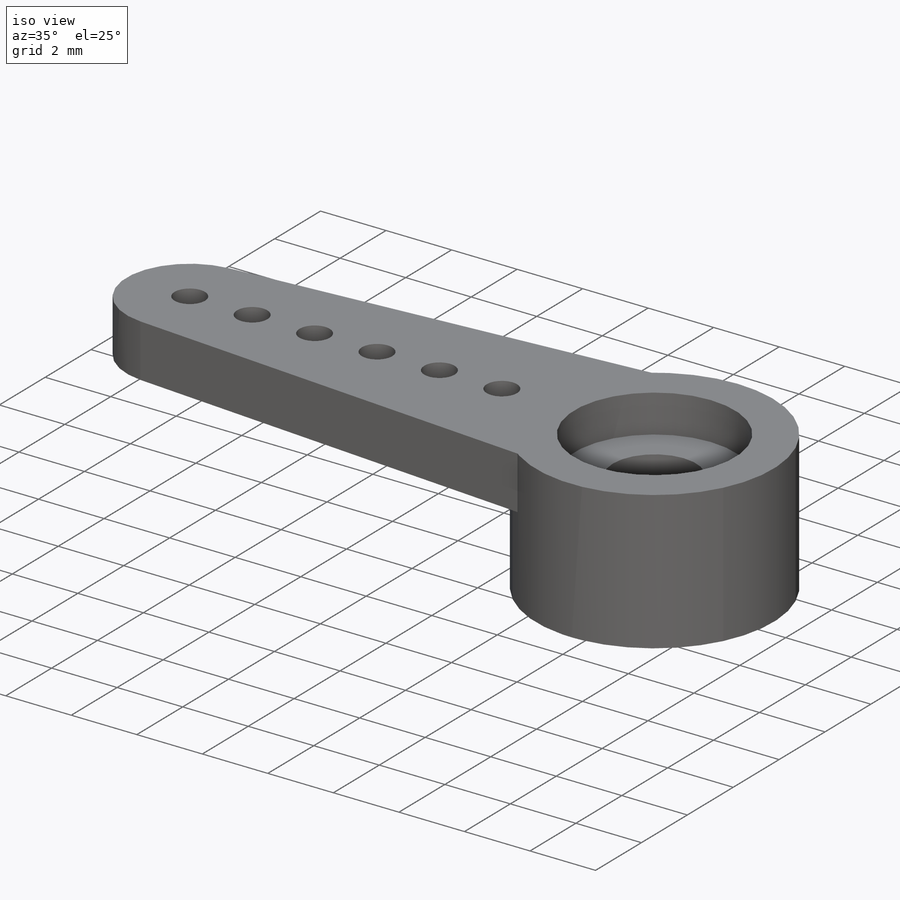
[diagram: iso view]
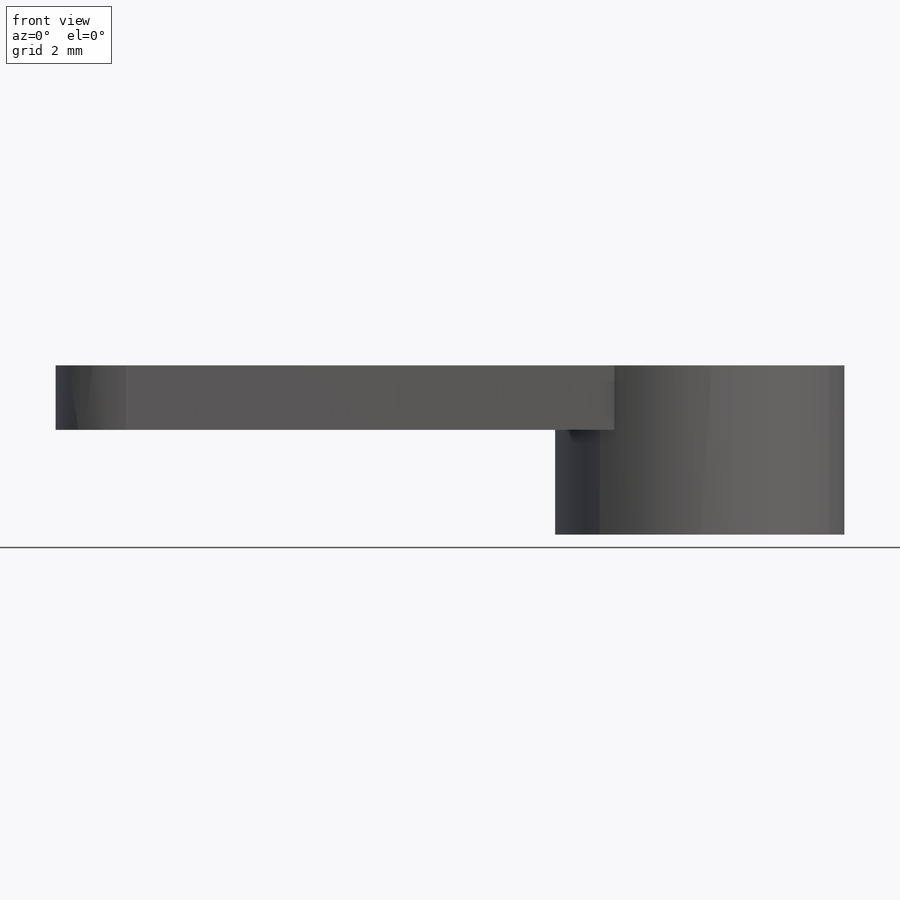
[diagram: front view]
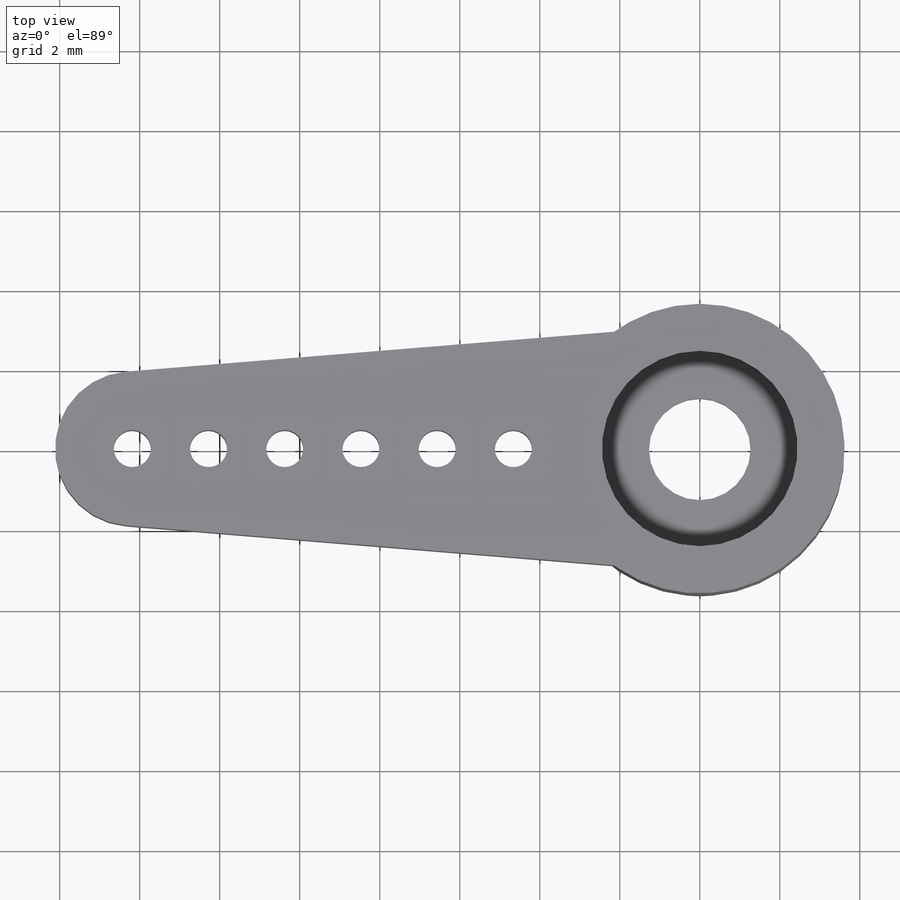
[diagram: top view]
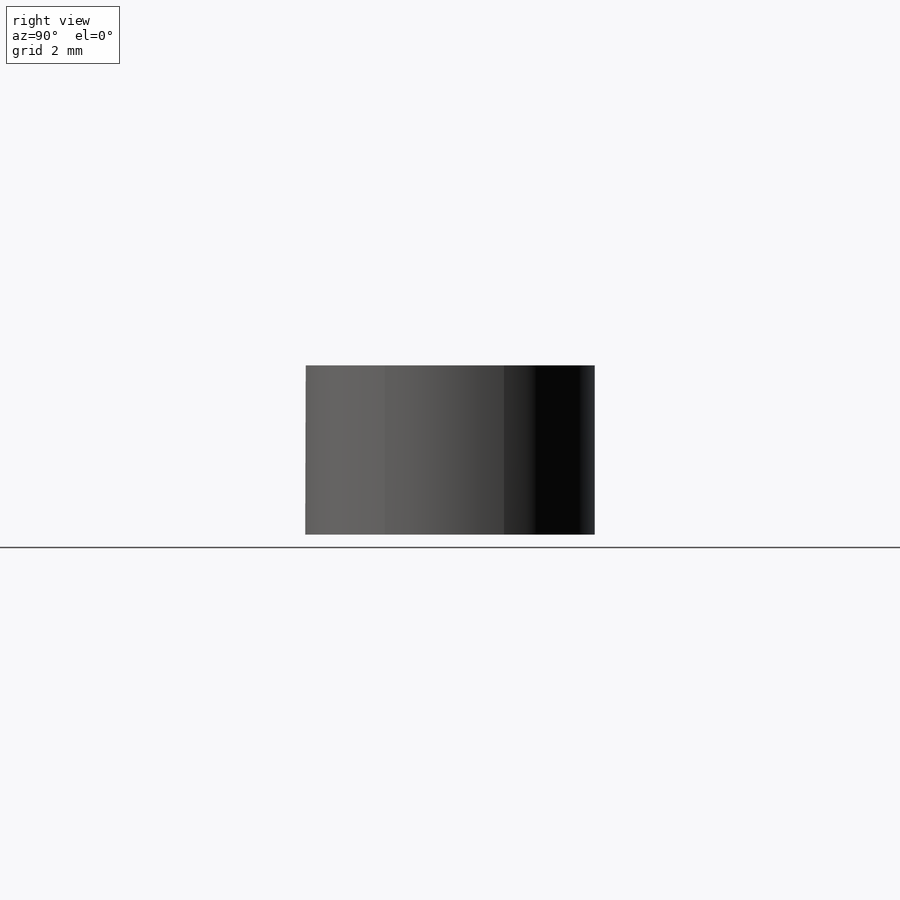
[diagram: right view]
SOLIDWORKS PART (.sldprt)
format: sldprt  version: not decoded by parser v0  size: 253,952 bytes
history: native  units: mm
features: sketch x5, cut_extrude x3, extrude x2, material x1 (+13 scaffold rows collapsed)
feature tree (24):
  scaffold x13  (default folders/planes/origin — collapsed)
  material  "Nylon 101"
  sketch  "Sketch18"  dims[c1.D1=1.9304mm c1.D2=3.6195mm c1.D3=5.6642mm c1.D4=19.7358mm c2.D3=19.7358mm c2.D4=5.842mm]
  extrude  "Extrude17"  Depth=1.6129mm
  sketch  "Sketch19"
  extrude  "Extrude19"  Depth=4.2291mm
  sketch  "Sketch20"  dims[D1=0.9271mm D3=2.54mm D2=1.905mm]
  cut_extrude  "Extrude20"  [1 undecoded]
  sketch  "Sketch21"  dims[D1=4.8895mm]
  cut_extrude  "Extrude21"  Depth=1.1557mm
  sketch  "Sketch22"  dims[D1=4.572mm]
  cut_extrude  "Extrude22"  Depth=2.3368mm
decode coverage: 8 of 10 modeling features carry decoded parameters
note: 1 parameter value undecoded
note: suppression state not decoded; provenance and decode notes live in map.json
